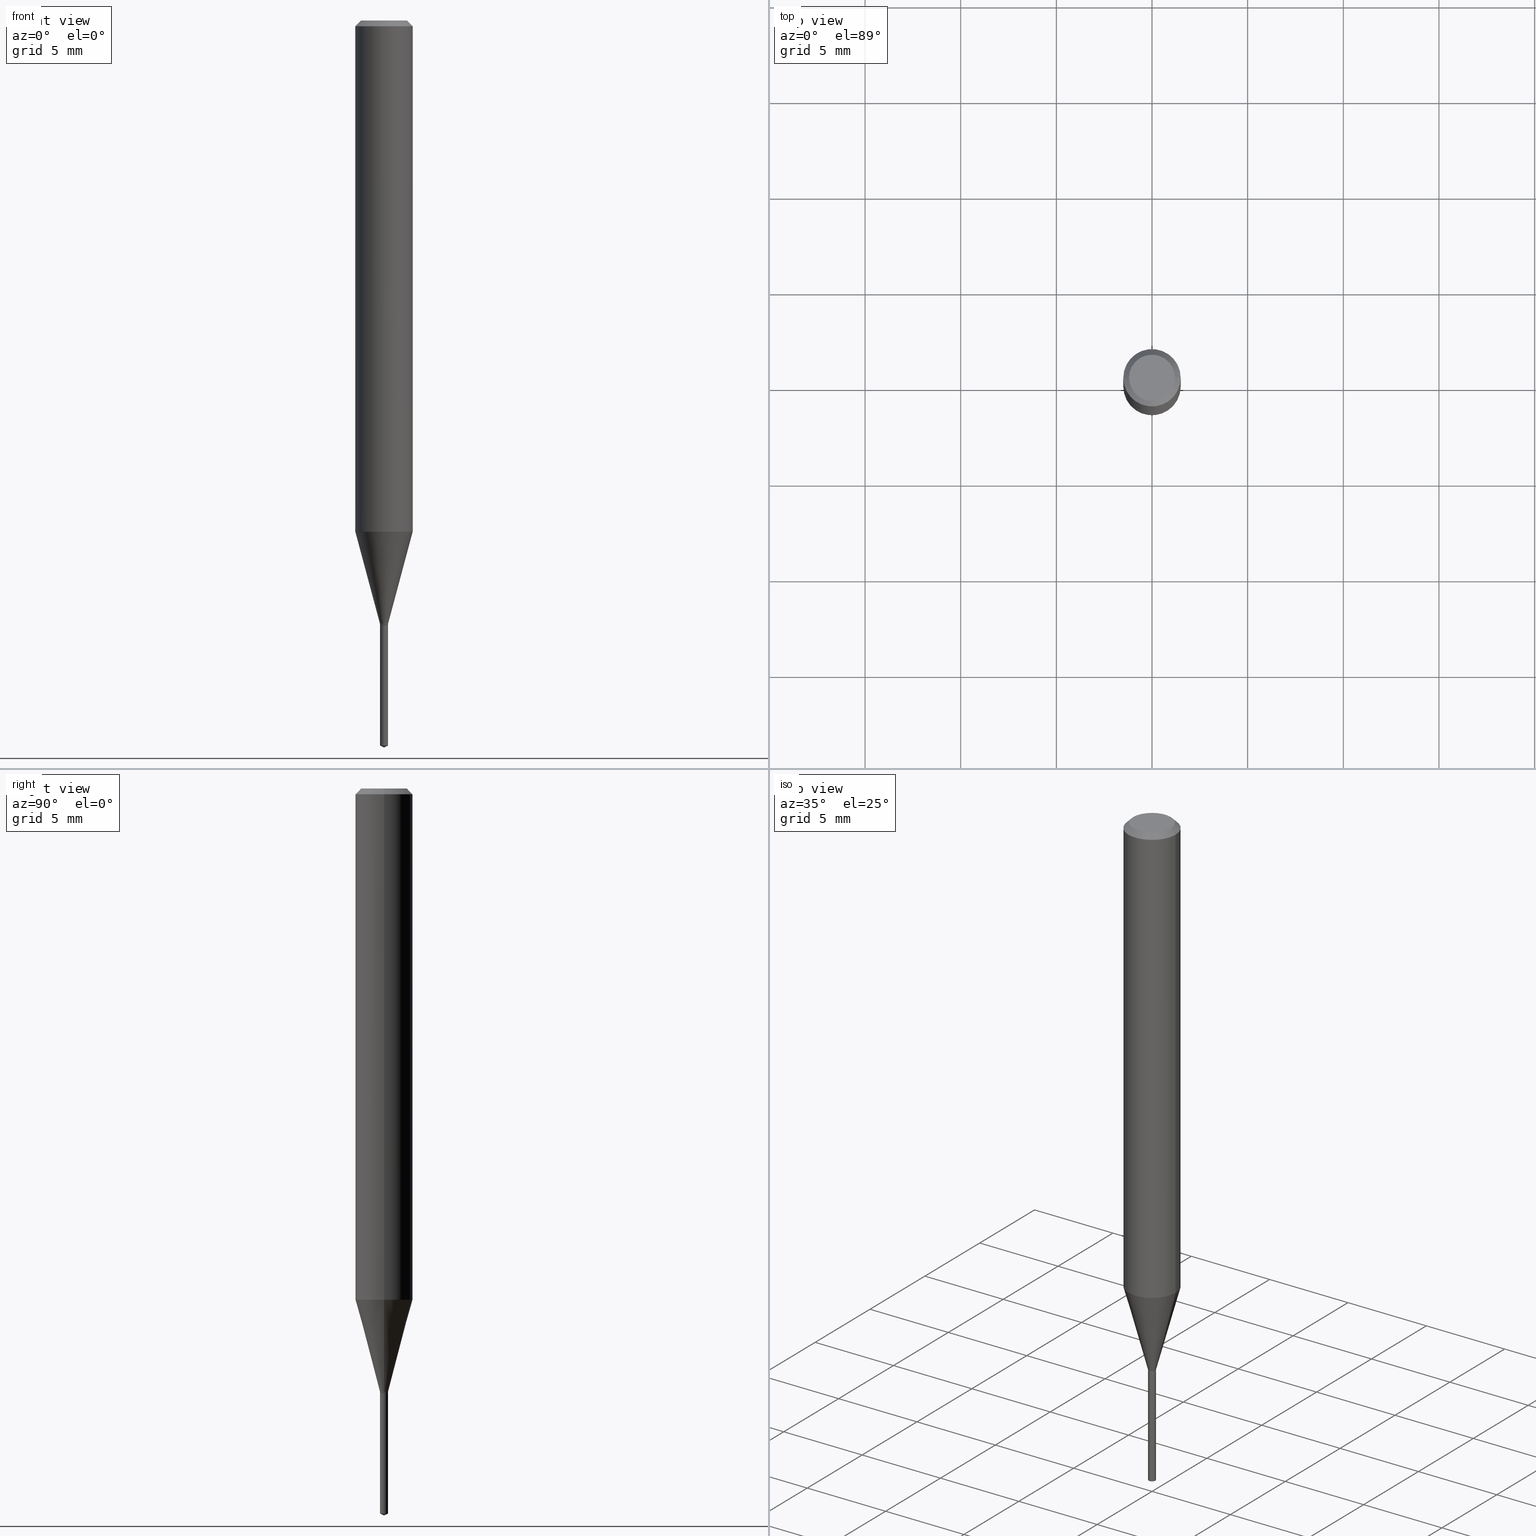
[diagram: canonical four-view strip — front | top / right | iso, engineering-drawing reading convention]
A machine part, canonical four-view strip (front | top / right | iso — engineering-drawing reading convention). The complete STEP part file that produces these views, byte-faithful:
ISO-10303-21;
HEADER;
FILE_DESCRIPTION (( 'STEP AP203' ),
    '1' );
FILE_NAME ('07417.STEP',
    '2024-04-23T21:13:39',
    ( '' ),
    ( '' ),
    'SwSTEP 2.0',
    'SolidWorks 2023',
    '' );
FILE_SCHEMA (( 'CONFIG_CONTROL_DESIGN' ));
ENDSEC;

DATA;
#1 = CARTESIAN_POINT ( 'NONE',  ( 5.861977570023868854E-17, 0.008249999999995658376, -1.244099999999999984 ) ) ;
#2 = CARTESIAN_POINT ( 'NONE',  ( -0.008250000000000000389, -4.276403454607441513E-15, -1.241600000000000037 ) ) ;
#3 = EDGE_CURVE ( 'NONE', #97, #46, #389, .T. ) ;
#4 = CARTESIAN_POINT ( 'NONE',  ( 2.888098660104664204E-31, -4.123439461173780263E-17, -0.01181000000000007218 ) ) ;
#5 = FACE_OUTER_BOUND ( 'NONE', #148, .T. ) ;
#6 = ORIENTED_EDGE ( 'NONE', *, *, #441, .T. ) ;
#7 = PLANE ( 'NONE',  #131 ) ;
#8 = VECTOR ( 'NONE', #340, 39.37007874015748854 ) ;
#9 = VECTOR ( 'NONE', #155, 39.37007874015748143 ) ;
#10 = CARTESIAN_POINT ( 'NONE',  ( 0.05905000000000013710, -4.085423580312769324E-15, -1.052011818975500779 ) ) ;
#11 = ORIENTED_EDGE ( 'NONE', *, *, #454, .T. ) ;
#12 = DIRECTION ( 'NONE',  ( -0.7071067811865453523, 2.468850131082234184E-15, -0.7071067811865496822 ) ) ;
#13 = FACE_OUTER_BOUND ( 'NONE', #242, .T. ) ;
#14 = EDGE_CURVE ( 'NONE', #178, #478, #348, .T. ) ;
#15 = ORIENTED_EDGE ( 'NONE', *, *, #164, .F. ) ;
#16 = CALENDAR_DATE ( 2024, 23, 4 ) ;
#17 = AXIS2_PLACEMENT_3D ( 'NONE', #404, #149, #292 ) ;
#18 = CIRCLE ( 'NONE', #196, 0.008250000000000000389 ) ;
#19 = ORIENTED_EDGE ( 'NONE', *, *, #205, .F. ) ;
#20 = DIRECTION ( 'NONE',  ( -6.982962677686266711E-15, -1.000000000000000000, 3.520397390770526445E-15 ) ) ;
#21 = APPROVAL_STATUS ( 'not_yet_approved' ) ;
#22 = CONICAL_SURFACE ( 'NONE', #239, 0.05904999999999999832, 0.7853981633974452814 ) ;
#23 = ORIENTED_EDGE ( 'NONE', *, *, #61, .F. ) ;
#24 = CIRCLE ( 'NONE', #182, 0.008250000000000003858 ) ;
#25 = EDGE_CURVE ( 'NONE', #175, #450, #203, .T. ) ;
#26 = CARTESIAN_POINT ( 'NONE',  ( 0.008250000000000000389, -4.392632672398560829E-15, -1.241600000000000037 ) ) ;
#27 = APPROVAL_STATUS ( 'not_yet_approved' ) ;
#28 = VERTEX_POINT ( 'NONE', #204 ) ;
#29 = ORIENTED_EDGE ( 'NONE', *, *, #295, .T. ) ;
#30 = CARTESIAN_POINT ( 'NONE',  ( -5.760944209088129273E-17, -0.008250000000004345871, -1.244099999999999984 ) ) ;
#31 = AXIS2_PLACEMENT_3D ( 'NONE', #140, #102, #396 ) ;
#32 = PRODUCT_DEFINITION_FORMATION_WITH_SPECIFIED_SOURCE ( 'ANY', '', #330, .NOT_KNOWN. ) ;
#33 = CALENDAR_DATE ( 2024, 23, 4 ) ;
#34 = ADVANCED_FACE ( 'NONE', ( #388 ), #165, .T. ) ;
#35 = EDGE_LOOP ( 'NONE', ( #318, #361, #208, #320 ) ) ;
#36 = CIRCLE ( 'NONE', #31, 0.04724000000000000421 ) ;
#37 = AXIS2_PLACEMENT_3D ( 'NONE', #302, #419, #232 ) ;
#38 = CARTESIAN_POINT ( 'NONE',  ( 3.036294069759465269E-29, -4.335023230307649634E-15, -1.241600000000000037 ) ) ;
#39 = EDGE_CURVE ( 'NONE', #276, #46, #170, .T. ) ;
#40 = DIRECTION ( 'NONE',  ( -2.433949354103485076E-29, 3.507977849870565923E-15, 1.000000000000000000 ) ) ;
#41 = SHAPE_DEFINITION_REPRESENTATION ( #188, #275 ) ;
#42 = FACE_OUTER_BOUND ( 'NONE', #250, .T. ) ;
#43 = EDGE_LOOP ( 'NONE', ( #56, #137 ) ) ;
#44 = CARTESIAN_POINT ( 'NONE',  ( 0.05904999999999999832, -4.463468013801466955E-16, -0.01181000000000007218 ) ) ;
#45 = DIRECTION ( 'NONE',  ( -2.445468806185136877E-29, 3.491481338843145188E-15, 1.000000000000000000 ) ) ;
#46 = VERTEX_POINT ( 'NONE', #315 ) ;
#47 = DIRECTION ( 'NONE',  ( -6.982962677686266711E-15, -1.000000000000000000, 0.000000000000000000 ) ) ;
#48 = CC_DESIGN_APPROVAL ( #100, ( #32 ) ) ;
#49 = CARTESIAN_POINT ( 'NONE',  ( -0.008250000000000000389, -4.279894935946284521E-15, -1.243600000000000039 ) ) ;
#50 = VERTEX_POINT ( 'NONE', #26 ) ;
#51 = APPROVAL ( #313, 'UNSPECIFIED' ) ;
#52 = FACE_OUTER_BOUND ( 'NONE', #473, .T. ) ;
#53 = ORIENTED_EDGE ( 'NONE', *, *, #55, .F. ) ;
#54 = CARTESIAN_POINT ( 'NONE',  ( 3.042407741774928155E-29, -4.343751933654757151E-15, -1.244099999999999984 ) ) ;
#55 = EDGE_CURVE ( 'NONE', #28, #178, #470, .T. ) ;
#56 = ORIENTED_EDGE ( 'NONE', *, *, #114, .T. ) ;
#57 = DIRECTION ( 'NONE',  ( -2.445468806185136597E-29, 3.491481338843145583E-15, 1.000000000000000000 ) ) ;
#58 = ORIENTED_EDGE ( 'NONE', *, *, #274, .F. ) ;
#59 = ORIENTED_EDGE ( 'NONE', *, *, #363, .T. ) ;
#60 = ORIENTED_EDGE ( 'NONE', *, *, #405, .T. ) ;
#61 = EDGE_CURVE ( 'NONE', #28, #478, #443, .T. ) ;
#62 = AXIS2_PLACEMENT_3D ( 'NONE', #289, #110, #255 ) ;
#63 = DIRECTION ( 'NONE',  ( -2.445468806185136877E-29, 3.491481338843145188E-15, 1.000000000000000000 ) ) ;
#64 = LOCAL_TIME ( 17, 13, 39.00000000000000000, #309 ) ;
#65 = PERSON ( 'UNSPECIFIED', 'UNSPECIFIED', 'UNSPECIFIED', ('UNSPECIFIED'), ('UNSPECIFIED'), ('UNSPECIFIED') ) ;
#66 = DIRECTION ( 'NONE',  ( 6.982962677686265922E-15, 1.000000000000000000, -3.507977849870566318E-15 ) ) ;
#67 = EDGE_LOOP ( 'NONE', ( #53, #350, #324 ) ) ;
#68 = COORDINATED_UNIVERSAL_TIME_OFFSET ( 5, 0, .BEHIND. ) ;
#69 = DIRECTION ( 'NONE',  ( -2.445468806185136877E-29, 3.491481338843145188E-15, 1.000000000000000000 ) ) ;
#70 = EDGE_CURVE ( 'NONE', #247, #243, #439, .T. ) ;
#71 = AXIS2_PLACEMENT_3D ( 'NONE', #229, #72, #197 ) ;
#72 = DIRECTION ( 'NONE',  ( -2.445468806185136597E-29, 3.491481338843145583E-15, 1.000000000000000000 ) ) ;
#73 = DIRECTION ( 'NONE',  ( -2.445468806185136597E-29, 3.491481338843145583E-15, 1.000000000000000000 ) ) ;
#74 = CARTESIAN_POINT ( 'NONE',  ( 2.572662087042671903E-29, -3.673079634195394404E-15, -1.052011818975500779 ) ) ;
#75 = ADVANCED_FACE ( 'NONE', ( #346 ), #22, .T. ) ;
#76 = FACE_OUTER_BOUND ( 'NONE', #486, .T. ) ;
#77 = CLOSED_SHELL ( 'NONE', ( #475, #109, #180, #160, #144, #184, #173, #248, #75, #433, #258, #213 ) ) ;
#78 = DIRECTION ( 'NONE',  ( -2.445468806185136597E-29, 3.491481338843145583E-15, 1.000000000000000000 ) ) ;
#79 = CONICAL_SURFACE ( 'NONE', #368, 0.007749999999999999944, 0.7853981633975496424 ) ;
#80 = DIRECTION ( 'NONE',  ( -0.7071067811866191821, 7.493145998870612907E-15, 0.7071067811864758523 ) ) ;
#81 = CARTESIAN_POINT ( 'NONE',  ( 0.007749999999999999944, -4.397869894406826129E-15, -1.244099999999999984 ) ) ;
#82 = CARTESIAN_POINT ( 'NONE',  ( 3.042407741774928155E-29, -4.343751933654757151E-15, -1.244099999999999984 ) ) ;
#83 = DIRECTION ( 'NONE',  ( -6.982962677686265133E-15, -1.000000000000000000, 0.000000000000000000 ) ) ;
#84 = ADVANCED_FACE ( 'NONE', ( #253 ), #329, .F. ) ;
#85 = AXIS2_PLACEMENT_3D ( 'NONE', #359, #244, #20 ) ;
#86 = AXIS2_PLACEMENT_3D ( 'NONE', #374, #40, #47 ) ;
#87 = CARTESIAN_POINT ( 'NONE',  ( 3.036294069759465269E-29, -4.335023230307649634E-15, -1.241600000000000037 ) ) ;
#88 = CARTESIAN_POINT ( 'NONE',  ( 3.042407741774928155E-29, -4.343751933654757151E-15, -1.244099999999999984 ) ) ;
#89 = DIRECTION ( 'NONE',  ( -1.000000000000000000, 6.982962677686265922E-15, -4.876176775795935793E-29 ) ) ;
#90 = EDGE_CURVE ( 'NONE', #243, #168, #322, .T. ) ;
#91 = DIRECTION ( 'NONE',  ( -2.445468806185136597E-29, 3.491481338843145583E-15, 1.000000000000000000 ) ) ;
#92 = AXIS2_PLACEMENT_3D ( 'NONE', #338, #377, #367 ) ;
#93 = CONICAL_SURFACE ( 'NONE', #317, 0.007749999999999999944, 0.7853981633975496424 ) ;
#94 = CARTESIAN_POINT ( 'NONE',  ( 3.042407741774928155E-29, -4.343751933654757151E-15, -1.244099999999999984 ) ) ;
#95 = DATE_AND_TIME ( #464, #376 ) ;
#96 = EDGE_LOOP ( 'NONE', ( #11, #353, #251, #105 ) ) ;
#97 = VERTEX_POINT ( 'NONE', #214 ) ;
#98 = DATE_AND_TIME ( #390, #159 ) ;
#99 = DIRECTION ( 'NONE',  ( 1.000000000000000000, -6.982962677686238312E-15, 0.000000000000000000 ) ) ;
#100 = APPROVAL ( #27, 'UNSPECIFIED' ) ;
#101 = EDGE_LOOP ( 'NONE', ( #288, #157, #381, #162 ) ) ;
#102 = DIRECTION ( 'NONE',  ( -2.445468806185136597E-29, 3.491481338843145583E-15, 1.000000000000000000 ) ) ;
#103 = CIRCLE ( 'NONE', #181, 0.008250000000000000389 ) ;
#104 = CIRCLE ( 'NONE', #411, 0.05905000000000013710 ) ;
#105 = ORIENTED_EDGE ( 'NONE', *, *, #39, .F. ) ;
#106 = CARTESIAN_POINT ( 'NONE',  ( 2.888098660104664204E-31, -4.123439461173780263E-17, -0.01181000000000007218 ) ) ;
#107 = CARTESIAN_POINT ( 'NONE',  ( 3.041185007371835914E-29, -4.342006192985336437E-15, -1.243600000000000039 ) ) ;
#108 = ORIENTED_EDGE ( 'NONE', *, *, #220, .F. ) ;
#109 = ADVANCED_FACE ( 'NONE', ( #332 ), #126, .T. ) ;
#110 = DIRECTION ( 'NONE',  ( -2.445468806185136597E-29, 3.491481338843145583E-15, 1.000000000000000000 ) ) ;
#111 = PERSON_AND_ORGANIZATION_ROLE ( 'design_owner' ) ;
#112 = LOCAL_TIME ( 17, 13, 39.00000000000000000, #283 ) ;
#113 = CYLINDRICAL_SURFACE ( 'NONE', #86, 0.008250000000000002123 ) ;
#114 = EDGE_CURVE ( 'NONE', #444, #306, #36, .T. ) ;
#115 = FACE_OUTER_BOUND ( 'NONE', #323, .T. ) ;
#116 = DIRECTION ( 'NONE',  ( -2.445468806185136597E-29, 3.491481338843145583E-15, 1.000000000000000000 ) ) ;
#117 = AXIS2_PLACEMENT_3D ( 'NONE', #227, #198, #224 ) ;
#118 = AXIS2_PLACEMENT_3D ( 'NONE', #38, #235, #456 ) ;
#119 = CARTESIAN_POINT ( 'NONE',  ( 0.008250000000000000389, -5.760944209091170086E-17, 4.022845840031647239E-31 ) ) ;
#120 = CARTESIAN_POINT ( 'NONE',  ( -0.05904999999999999832, 3.711095515056362547E-16, -0.01181000000000007218 ) ) ;
#121 = ORIENTED_EDGE ( 'NONE', *, *, #90, .T. ) ;
#122 = EDGE_CURVE ( 'NONE', #178, #151, #362, .T. ) ;
#123 = ORIENTED_EDGE ( 'NONE', *, *, #25, .F. ) ;
#124 = CARTESIAN_POINT ( 'NONE',  ( 5.861977570024480222E-17, 0.008249999999995656641, -1.244099999999999984 ) ) ;
#125 = DIRECTION ( 'NONE',  ( -2.445468806185136597E-29, 3.491481338843145583E-15, 1.000000000000000000 ) ) ;
#126 = CONICAL_SURFACE ( 'NONE', #209, 0.05904999999999999832, 0.7853981633974452814 ) ;
#127 = CC_DESIGN_APPROVAL ( #51, ( #270 ) ) ;
#128 = DIRECTION ( 'NONE',  ( -2.433949354103485076E-29, 3.507977849870565923E-15, 1.000000000000000000 ) ) ;
#129 = APPROVAL ( #21, 'UNSPECIFIED' ) ;
#130 = DIRECTION ( 'NONE',  ( 2.438088387897960049E-29, -3.491481338843145188E-15, -1.000000000000000000 ) ) ;
#131 = AXIS2_PLACEMENT_3D ( 'NONE', #424, #130, #89 ) ;
#132 = ORIENTED_EDGE ( 'NONE', *, *, #268, .F. ) ;
#133 = CC_DESIGN_DATE_AND_TIME_ASSIGNMENT ( #171, #429, ( #270 ) ) ;
#134 =( CONVERSION_BASED_UNIT ( 'INCH', #431 ) LENGTH_UNIT ( ) NAMED_UNIT ( #277 ) );
#135 = MANIFOLD_SOLID_BREP ( 'Body-Move/Copy2[1]', #158 ) ;
#136 = ORIENTED_EDGE ( 'NONE', *, *, #268, .T. ) ;
#137 = ORIENTED_EDGE ( 'NONE', *, *, #413, .T. ) ;
#138 = APPROVAL_ROLE ( '' ) ;
#139 = MANIFOLD_SOLID_BREP ( 'Body-Move/Copy2[2]', #77 ) ;
#140 = CARTESIAN_POINT ( 'NONE',  ( 8.265746106709734507E-48, -1.180129479067563789E-33, -3.380025165646692144E-19 ) ) ;
#141 = DIRECTION ( 'NONE',  ( 6.439704144417005898E-15, 0.9063077870366488265, 0.4226182617407018838 ) ) ;
#142 = VECTOR ( 'NONE', #345, 39.37007874015748143 ) ;
#143 = CARTESIAN_POINT ( 'NONE',  ( 0.000000000000000000, 0.000000000000000000, 0.000000000000000000 ) ) ;
#144 = ADVANCED_FACE ( 'NONE', ( #488 ), #146, .T. ) ;
#145 = APPLICATION_CONTEXT ( 'configuration controlled 3d designs of mechanical parts and assemblies' ) ;
#146 = CYLINDRICAL_SURFACE ( 'NONE', #62, 0.008250000000000000389 ) ;
#147 = CALENDAR_DATE ( 2024, 23, 4 ) ;
#148 = EDGE_LOOP ( 'NONE', ( #58, #425, #176, #393 ) ) ;
#149 = DIRECTION ( 'NONE',  ( -2.445468806185136597E-29, 3.491481338843145583E-15, 1.000000000000000000 ) ) ;
#150 = AXIS2_PLACEMENT_3D ( 'NONE', #107, #254, #284 ) ;
#151 = VERTEX_POINT ( 'NONE', #399 ) ;
#152 = CIRCLE ( 'NONE', #219, 0.008250000000000000389 ) ;
#153 = DIRECTION ( 'NONE',  ( -2.445468806185136877E-29, 3.491481338843145188E-15, 1.000000000000000000 ) ) ;
#154 = CARTESIAN_POINT ( 'NONE',  ( 3.036294069759465269E-29, -4.335023230307649634E-15, -1.241600000000000037 ) ) ;
#155 = DIRECTION ( 'NONE',  ( 0.7071067811865453523, -7.319954787623248157E-15, -0.7071067811865496822 ) ) ;
#156 = CARTESIAN_POINT ( 'NONE',  ( 0.008250000000000000389, -4.399615635076248421E-15, -1.243600000000000039 ) ) ;
#157 = ORIENTED_EDGE ( 'NONE', *, *, #311, .T. ) ;
#158 = CLOSED_SHELL ( 'NONE', ( #386, #469, #34, #279, #84 ) ) ;
#159 = LOCAL_TIME ( 17, 13, 39.00000000000000000, #216 ) ;
#160 = ADVANCED_FACE ( 'NONE', ( #218 ), #331, .T. ) ;
#161 = DIRECTION ( 'NONE',  ( 1.000000000000000000, -6.982962677686243834E-15, 0.000000000000000000 ) ) ;
#162 = ORIENTED_EDGE ( 'NONE', *, *, #122, .F. ) ;
#163 = CARTESIAN_POINT ( 'NONE',  ( 0.007749999999999999944, -4.397869894406826129E-15, -1.244099999999999984 ) ) ;
#164 = EDGE_CURVE ( 'NONE', #243, #247, #103, .T. ) ;
#165 = CONICAL_SURFACE ( 'NONE', #85, 84.42940631927260142, 1.134464013796308013 ) ;
#166 = CIRCLE ( 'NONE', #463, 0.05905000000000013710 ) ;
#167 = ORIENTED_EDGE ( 'NONE', *, *, #55, .T. ) ;
#168 = VERTEX_POINT ( 'NONE', #193 ) ;
#169 = DIRECTION ( 'NONE',  ( 1.000000000000000000, -6.982962677686238312E-15, 0.000000000000000000 ) ) ;
#170 = LINE ( 'NONE', #385, #269 ) ;
#171 = DATE_AND_TIME ( #16, #64 ) ;
#172 = ORIENTED_EDGE ( 'NONE', *, *, #343, .T. ) ;
#173 = ADVANCED_FACE ( 'NONE', ( #42 ), #427, .T. ) ;
#174 = AXIS2_PLACEMENT_3D ( 'NONE', #298, #417, #83 ) ;
#175 = VERTEX_POINT ( 'NONE', #297 ) ;
#176 = ORIENTED_EDGE ( 'NONE', *, *, #39, .T. ) ;
#177 = PERSON_AND_ORGANIZATION ( #65, #457 ) ;
#178 = VERTEX_POINT ( 'NONE', #370 ) ;
#179 = ORIENTED_EDGE ( 'NONE', *, *, #295, .F. ) ;
#180 = ADVANCED_FACE ( 'NONE', ( #260 ), #265, .T. ) ;
#181 = AXIS2_PLACEMENT_3D ( 'NONE', #448, #73, #221 ) ;
#182 = AXIS2_PLACEMENT_3D ( 'NONE', #308, #408, #337 ) ;
#183 = CARTESIAN_POINT ( 'NONE',  ( -0.008250000000000000389, 5.861977570020826810E-17, -4.058121449460297368E-31 ) ) ;
#184 = ADVANCED_FACE ( 'NONE', ( #115 ), #191, .T. ) ;
#185 = VECTOR ( 'NONE', #69, 39.37007874015748143 ) ;
#186 = CC_DESIGN_SECURITY_CLASSIFICATION ( #270, ( #32 ) ) ;
#187 = CARTESIAN_POINT ( 'NONE',  ( 3.042407741774928155E-29, -4.343751933654757151E-15, -1.244099999999999984 ) ) ;
#188 = PRODUCT_DEFINITION_SHAPE ( 'NONE', 'NONE',  #378 ) ;
#189 = DIRECTION ( 'NONE',  ( 1.000000000000000000, -6.982962677686266711E-15, 0.000000000000000000 ) ) ;
#190 = APPROVAL_DATE_TIME ( #95, #51 ) ;
#191 = CYLINDRICAL_SURFACE ( 'NONE', #92, 0.008250000000000000389 ) ;
#192 = DIRECTION ( 'NONE',  ( 1.000000000000000000, -6.982962677686264344E-15, 0.000000000000000000 ) ) ;
#193 = CARTESIAN_POINT ( 'NONE',  ( -0.008250000000000000389, -4.279894935946284521E-15, -1.241600000000000037 ) ) ;
#194 = ORIENTED_EDGE ( 'NONE', *, *, #114, .F. ) ;
#195 = AXIS2_PLACEMENT_3D ( 'NONE', #384, #312, #466 ) ;
#196 = AXIS2_PLACEMENT_3D ( 'NONE', #291, #223, #366 ) ;
#197 = DIRECTION ( 'NONE',  ( 1.000000000000000000, -6.982962677686266711E-15, 4.876185090822587894E-29 ) ) ;
#198 = DIRECTION ( 'NONE',  ( -2.445468806185136597E-29, 3.491481338843145583E-15, 1.000000000000000000 ) ) ;
#199 = EDGE_CURVE ( 'NONE', #168, #50, #380, .T. ) ;
#200 = DIRECTION ( 'NONE',  ( 1.000000000000000000, -6.982962677686243834E-15, 0.000000000000000000 ) ) ;
#201 = ORIENTED_EDGE ( 'NONE', *, *, #220, .T. ) ;
#202 = ORIENTED_EDGE ( 'NONE', *, *, #228, .T. ) ;
#203 = CIRCLE ( 'NONE', #299, 0.007749999999999999944 ) ;
#204 = CARTESIAN_POINT ( 'NONE',  ( 3.641431628674223535E-29, -5.248285661191353441E-15, -1.496099999999999985 ) ) ;
#205 = EDGE_CURVE ( 'NONE', #168, #462, #451, .T. ) ;
#206 = ORIENTED_EDGE ( 'NONE', *, *, #373, .T. ) ;
#207 = DIRECTION ( 'NONE',  ( -2.445468806185136597E-29, 3.491481338843145583E-15, 1.000000000000000000 ) ) ;
#208 = ORIENTED_EDGE ( 'NONE', *, *, #454, .F. ) ;
#209 = AXIS2_PLACEMENT_3D ( 'NONE', #106, #286, #259 ) ;
#210 = CIRCLE ( 'NONE', #263, 0.007749999999999999944 ) ;
#211 = DIRECTION ( 'NONE',  ( -2.433949354103485076E-29, 3.507977849870565923E-15, 1.000000000000000000 ) ) ;
#212 = PERSON_AND_ORGANIZATION ( #65, #457 ) ;
#213 = ADVANCED_FACE ( 'NONE', ( #52 ), #93, .T. ) ;
#214 = CARTESIAN_POINT ( 'NONE',  ( -0.05904999999999999832, -1.437581528937225982E-15, -0.01181000000000007218 ) ) ;
#215 = ORIENTED_EDGE ( 'NONE', *, *, #261, .F. ) ;
#216 = COORDINATED_UNIVERSAL_TIME_OFFSET ( 5, 0, .BEHIND. ) ;
#217 = AXIS2_PLACEMENT_3D ( 'NONE', #154, #125, #161 ) ;
#218 = FACE_OUTER_BOUND ( 'NONE', #35, .T. ) ;
#219 = AXIS2_PLACEMENT_3D ( 'NONE', #87, #116, #200 ) ;
#220 = EDGE_CURVE ( 'NONE', #444, #97, #267, .T. ) ;
#221 = DIRECTION ( 'NONE',  ( 1.000000000000000000, -6.982962677686303787E-15, 0.000000000000000000 ) ) ;
#222 = PERSON_AND_ORGANIZATION_ROLE ( 'creator' ) ;
#223 = DIRECTION ( 'NONE',  ( -2.433949354103485076E-29, 3.507977849870565923E-15, 1.000000000000000000 ) ) ;
#224 = DIRECTION ( 'NONE',  ( 1.000000000000000000, -6.982962677686266711E-15, 4.876176775795936353E-29 ) ) ;
#225 = PERSON_AND_ORGANIZATION ( #65, #457 ) ;
#226 = APPROVAL_ROLE ( '' ) ;
#227 = CARTESIAN_POINT ( 'NONE',  ( 0.000000000000000000, 0.000000000000000000, 0.000000000000000000 ) ) ;
#228 = EDGE_CURVE ( 'NONE', #468, #151, #401, .T. ) ;
#229 = CARTESIAN_POINT ( 'NONE',  ( 8.265746106709734507E-48, -1.180129479067563789E-33, -3.380025165646692144E-19 ) ) ;
#230 = DIRECTION ( 'NONE',  ( 1.000000000000000000, -6.982962677686265922E-15, 4.876176775795935793E-29 ) ) ;
#231 = DIRECTION ( 'NONE',  ( 1.000000000000000000, -6.982962677686238312E-15, 0.000000000000000000 ) ) ;
#232 = DIRECTION ( 'NONE',  ( 1.000000000000000000, -6.982962677686266711E-15, 4.876176775795936353E-29 ) ) ;
#233 = AXIS2_PLACEMENT_3D ( 'NONE', #294, #483, #66 ) ;
#234 = DIRECTION ( 'NONE',  ( 1.000000000000000000, -6.982962677686264344E-15, 0.000000000000000000 ) ) ;
#235 = DIRECTION ( 'NONE',  ( -2.445468806185136597E-29, 3.491481338843145583E-15, 1.000000000000000000 ) ) ;
#236 = EDGE_LOOP ( 'NONE', ( #476, #238, #458, #132 ) ) ;
#237 = ORIENTED_EDGE ( 'NONE', *, *, #3, .T. ) ;
#238 = ORIENTED_EDGE ( 'NONE', *, *, #241, .T. ) ;
#239 = AXIS2_PLACEMENT_3D ( 'NONE', #432, #477, #326 ) ;
#240 = AXIS2_PLACEMENT_3D ( 'NONE', #4, #78, #189 ) ;
#241 = EDGE_CURVE ( 'NONE', #175, #243, #335, .T. ) ;
#242 = EDGE_LOOP ( 'NONE', ( #428, #29, #489, #246 ) ) ;
#243 = VERTEX_POINT ( 'NONE', #49 ) ;
#244 = DIRECTION ( 'NONE',  ( -2.433949354103485076E-29, 3.507977849870565923E-15, 1.000000000000000000 ) ) ;
#245 =( NAMED_UNIT ( * ) PLANE_ANGLE_UNIT ( ) SI_UNIT ( $, .RADIAN. ) );
#246 = ORIENTED_EDGE ( 'NONE', *, *, #228, .F. ) ;
#247 = VERTEX_POINT ( 'NONE', #156 ) ;
#248 = ADVANCED_FACE ( 'NONE', ( #5 ), #264, .T. ) ;
#249 = DIRECTION ( 'NONE',  ( -2.433949354103485076E-29, 3.507977849870566318E-15, 1.000000000000000000 ) ) ;
#250 = EDGE_LOOP ( 'NONE', ( #19, #356, #6, #303 ) ) ;
#251 = ORIENTED_EDGE ( 'NONE', *, *, #343, .F. ) ;
#252 = MECHANICAL_CONTEXT ( 'NONE', #145, 'mechanical' ) ;
#253 = FACE_OUTER_BOUND ( 'NONE', #430, .T. ) ;
#254 = DIRECTION ( 'NONE',  ( -2.445468806185136597E-29, 3.491481338843145583E-15, 1.000000000000000000 ) ) ;
#255 = DIRECTION ( 'NONE',  ( 1.000000000000000000, -6.982962677686266711E-15, 4.876176775795935793E-29 ) ) ;
#256 = PERSON_AND_ORGANIZATION ( #65, #457 ) ;
#257 = APPROVAL_PERSON_ORGANIZATION ( #212, #100, #474 ) ;
#258 = ADVANCED_FACE ( 'NONE', ( #76 ), #452, .F. ) ;
#259 = DIRECTION ( 'NONE',  ( -1.000000000000000000, 6.982962677686266711E-15, 0.000000000000000000 ) ) ;
#260 = FACE_OUTER_BOUND ( 'NONE', #96, .T. ) ;
#261 = EDGE_CURVE ( 'NONE', #50, #168, #152, .T. ) ;
#262 = LINE ( 'NONE', #372, #285 ) ;
#263 = AXIS2_PLACEMENT_3D ( 'NONE', #82, #371, #231 ) ;
#264 = CYLINDRICAL_SURFACE ( 'NONE', #37, 0.05905000000000006771 ) ;
#265 = CYLINDRICAL_SURFACE ( 'NONE', #117, 0.05905000000000006771 ) ;
#266 = CARTESIAN_POINT ( 'NONE',  ( 5.861977570024475291E-17, 0.008249999999994789279, -1.492252961820221158 ) ) ;
#267 = LINE ( 'NONE', #120, #293 ) ;
#268 = EDGE_CURVE ( 'NONE', #450, #247, #344, .T. ) ;
#269 = VECTOR ( 'NONE', #63, 39.37007874015748143 ) ;
#270 = SECURITY_CLASSIFICATION ( '', '', #336 ) ;
#271 = CYLINDRICAL_SURFACE ( 'NONE', #310, 0.008250000000000002123 ) ;
#272 = PERSON_AND_ORGANIZATION ( #65, #457 ) ;
#273 = LINE ( 'NONE', #307, #420 ) ;
#274 = EDGE_CURVE ( 'NONE', #462, #97, #262, .T. ) ;
#275 = ADVANCED_BREP_SHAPE_REPRESENTATION ( '07417', ( #135, #139, #349 ), #490 ) ;
#276 = VERTEX_POINT ( 'NONE', #10 ) ;
#277 = DIMENSIONAL_EXPONENTS ( 1.000000000000000000, 0.000000000000000000, 0.000000000000000000, 0.000000000000000000, 0.000000000000000000, 0.000000000000000000, 0.000000000000000000 ) ;
#278 = CARTESIAN_POINT ( 'NONE',  ( 3.646399482916122911E-29, -5.214267027099868810E-15, -1.492252961820221158 ) ) ;
#279 = ADVANCED_FACE ( 'NONE', ( #13 ), #271, .T. ) ;
#280 =( NAMED_UNIT ( * ) SI_UNIT ( $, .STERADIAN. ) SOLID_ANGLE_UNIT ( ) );
#281 = ORIENTED_EDGE ( 'NONE', *, *, #413, .F. ) ;
#282 = ORIENTED_EDGE ( 'NONE', *, *, #90, .F. ) ;
#283 = COORDINATED_UNIVERSAL_TIME_OFFSET ( 5, 0, .BEHIND. ) ;
#284 = DIRECTION ( 'NONE',  ( 1.000000000000000000, -6.982962677686303787E-15, 0.000000000000000000 ) ) ;
#285 = VECTOR ( 'NONE', #45, 39.37007874015748143 ) ;
#286 = DIRECTION ( 'NONE',  ( 2.445468806185136597E-29, -3.491481338843145583E-15, -1.000000000000000000 ) ) ;
#287 = DIRECTION ( 'NONE',  ( -6.328713451373349657E-15, -0.9063077870366458288, 0.4226182617407081565 ) ) ;
#288 = ORIENTED_EDGE ( 'NONE', *, *, #14, .T. ) ;
#289 = CARTESIAN_POINT ( 'NONE',  ( 0.000000000000000000, 0.000000000000000000, 0.000000000000000000 ) ) ;
#290 = CC_DESIGN_PERSON_AND_ORGANIZATION_ASSIGNMENT ( #256, #445, ( #378 ) ) ;
#291 = CARTESIAN_POINT ( 'NONE',  ( 3.042407741774928155E-29, -4.343751933654757151E-15, -1.244099999999999984 ) ) ;
#292 = DIRECTION ( 'NONE',  ( 1.000000000000000000, -6.982962677686243834E-15, 0.000000000000000000 ) ) ;
#293 = VECTOR ( 'NONE', #12, 39.37007874015748143 ) ;
#294 = CARTESIAN_POINT ( 'NONE',  ( 3.042407741774928155E-29, -4.343751933654757151E-15, -1.244099999999999984 ) ) ;
#295 = EDGE_CURVE ( 'NONE', #478, #178, #24, .T. ) ;
#296 = CARTESIAN_POINT ( 'NONE',  ( 0.04724000000000000421, -3.852183633974369345E-16, -3.380025165621689721E-19 ) ) ;
#297 = CARTESIAN_POINT ( 'NONE',  ( -0.007749999999999999944, -4.286035644459238729E-15, -1.244099999999999984 ) ) ;
#298 = CARTESIAN_POINT ( 'NONE',  ( 3.042407741774928155E-29, -4.343751933654757151E-15, -1.244099999999999984 ) ) ;
#299 = AXIS2_PLACEMENT_3D ( 'NONE', #94, #57, #99 ) ;
#300 = LOCAL_TIME ( 17, 13, 39.00000000000000000, #68 ) ;
#301 = EDGE_LOOP ( 'NONE', ( #354, #121, #215, #398 ) ) ;
#302 = CARTESIAN_POINT ( 'NONE',  ( 0.000000000000000000, 0.000000000000000000, 0.000000000000000000 ) ) ;
#303 = ORIENTED_EDGE ( 'NONE', *, *, #328, .F. ) ;
#304 = CARTESIAN_POINT ( 'NONE',  ( 2.572662087042671903E-29, -3.673079634195394404E-15, -1.052011818975500779 ) ) ;
#305 = CC_DESIGN_DATE_AND_TIME_ASSIGNMENT ( #394, #319, ( #378 ) ) ;
#306 = VERTEX_POINT ( 'NONE', #296 ) ;
#307 = CARTESIAN_POINT ( 'NONE',  ( 0.008250000000000000389, -4.392632672398560829E-15, -1.241600000000000037 ) ) ;
#308 = CARTESIAN_POINT ( 'NONE',  ( 3.646399482916122911E-29, -5.214267027099868810E-15, -1.492252961820221158 ) ) ;
#309 = COORDINATED_UNIVERSAL_TIME_OFFSET ( 5, 0, .BEHIND. ) ;
#310 = AXIS2_PLACEMENT_3D ( 'NONE', #88, #128, #423 ) ;
#311 = EDGE_CURVE ( 'NONE', #478, #468, #453, .T. ) ;
#312 = DIRECTION ( 'NONE',  ( -2.445468806185136597E-29, 3.491481338843145583E-15, 1.000000000000000000 ) ) ;
#313 = APPROVAL_STATUS ( 'not_yet_approved' ) ;
#314 =( LENGTH_UNIT ( ) NAMED_UNIT ( * ) SI_UNIT ( $, .METRE. ) );
#315 = CARTESIAN_POINT ( 'NONE',  ( 0.05904999999999999832, -4.535783407291118600E-16, -0.01181000000000007218 ) ) ;
#316 = ORIENTED_EDGE ( 'NONE', *, *, #164, .T. ) ;
#317 = AXIS2_PLACEMENT_3D ( 'NONE', #187, #407, #410 ) ;
#318 = ORIENTED_EDGE ( 'NONE', *, *, #261, .T. ) ;
#319 = DATE_TIME_ROLE ( 'creation_date' ) ;
#320 = ORIENTED_EDGE ( 'NONE', *, *, #441, .F. ) ;
#321 = PERSON_AND_ORGANIZATION ( #65, #457 ) ;
#322 = LINE ( 'NONE', #183, #185 ) ;
#323 = EDGE_LOOP ( 'NONE', ( #282, #316, #206, #387 ) ) ;
#324 = ORIENTED_EDGE ( 'NONE', *, *, #14, .F. ) ;
#325 = VECTOR ( 'NONE', #249, 39.37007874015748143 ) ;
#326 = DIRECTION ( 'NONE',  ( -1.000000000000000000, 6.982962677686266711E-15, 0.000000000000000000 ) ) ;
#327 = APPROVAL_DATE_TIME ( #436, #100 ) ;
#328 = EDGE_CURVE ( 'NONE', #462, #276, #166, .T. ) ;
#329 = PLANE ( 'NONE',  #233 ) ;
#330 = PRODUCT ( '07417', '07417', '', ( #252 ) ) ;
#331 = CONICAL_SURFACE ( 'NONE', #17, 0.008250000000000000389, 0.2617993877991499074 ) ;
#332 = FACE_OUTER_BOUND ( 'NONE', #438, .T. ) ;
#333 = APPROVAL_PERSON_ORGANIZATION ( #272, #51, #226 ) ;
#334 = LINE ( 'NONE', #119, #341 ) ;
#335 = LINE ( 'NONE', #459, #364 ) ;
#336 = SECURITY_CLASSIFICATION_LEVEL ( 'unclassified' ) ;
#337 = DIRECTION ( 'NONE',  ( -6.982962677686266711E-15, -1.000000000000000000, 0.000000000000000000 ) ) ;
#338 = CARTESIAN_POINT ( 'NONE',  ( 0.000000000000000000, 0.000000000000000000, 0.000000000000000000 ) ) ;
#339 = ORIENTED_EDGE ( 'NONE', *, *, #241, .F. ) ;
#340 = DIRECTION ( 'NONE',  ( -0.2588190451025211836, 5.211531920934547886E-15, 0.9659258262890679791 ) ) ;
#341 = VECTOR ( 'NONE', #153, 39.37007874015748143 ) ;
#342 = FACE_OUTER_BOUND ( 'NONE', #43, .T. ) ;
#343 = EDGE_CURVE ( 'NONE', #46, #97, #358, .T. ) ;
#344 = LINE ( 'NONE', #81, #142 ) ;
#345 = DIRECTION ( 'NONE',  ( 0.7071067811866191821, -2.468850131083007662E-15, 0.7071067811864758523 ) ) ;
#346 = FACE_OUTER_BOUND ( 'NONE', #437, .T. ) ;
#347 = CC_DESIGN_PERSON_AND_ORGANIZATION_ASSIGNMENT ( #400, #222, ( #32 ) ) ;
#348 = CIRCLE ( 'NONE', #409, 0.008250000000000003858 ) ;
#349 = AXIS2_PLACEMENT_3D ( 'NONE', #143, #360, #440 ) ;
#350 = ORIENTED_EDGE ( 'NONE', *, *, #61, .T. ) ;
#351 = ORIENTED_EDGE ( 'NONE', *, *, #25, .T. ) ;
#352 = DIRECTION ( 'NONE',  ( -6.982962677686266711E-15, -1.000000000000000000, 3.520397390770526445E-15 ) ) ;
#353 = ORIENTED_EDGE ( 'NONE', *, *, #274, .T. ) ;
#354 = ORIENTED_EDGE ( 'NONE', *, *, #70, .T. ) ;
#355 = DIRECTION ( 'NONE',  ( -2.433949354103485076E-29, 3.507977849870565923E-15, 1.000000000000000000 ) ) ;
#356 = ORIENTED_EDGE ( 'NONE', *, *, #199, .T. ) ;
#357 = VECTOR ( 'NONE', #141, 39.37007874015748143 ) ;
#358 = CIRCLE ( 'NONE', #240, 0.05904999999999999832 ) ;
#359 = CARTESIAN_POINT ( 'NONE',  ( -9.216901474160064469E-28, 1.328816018163103804E-13, 37.87397874015748300 ) ) ;
#360 = DIRECTION ( 'NONE',  ( 0.000000000000000000, 0.000000000000000000, 1.000000000000000000 ) ) ;
#361 = ORIENTED_EDGE ( 'NONE', *, *, #205, .T. ) ;
#362 = LINE ( 'NONE', #30, #325 ) ;
#363 = EDGE_CURVE ( 'NONE', #151, #468, #18, .T. ) ;
#364 = VECTOR ( 'NONE', #80, 39.37007874015748143 ) ;
#365 = PERSON_AND_ORGANIZATION ( #65, #457 ) ;
#366 = DIRECTION ( 'NONE',  ( -6.982962677686265133E-15, -1.000000000000000000, 0.000000000000000000 ) ) ;
#367 = DIRECTION ( 'NONE',  ( 1.000000000000000000, -6.982962677686266711E-15, 4.876176775795935793E-29 ) ) ;
#368 = AXIS2_PLACEMENT_3D ( 'NONE', #54, #207, #169 ) ;
#369 = FACE_OUTER_BOUND ( 'NONE', #101, .T. ) ;
#370 = CARTESIAN_POINT ( 'NONE',  ( -5.760944209087525302E-17, -0.008250000000005218437, -1.492252961820221158 ) ) ;
#371 = DIRECTION ( 'NONE',  ( -2.445468806185136597E-29, 3.491481338843145583E-15, 1.000000000000000000 ) ) ;
#372 = CARTESIAN_POINT ( 'NONE',  ( -0.05905000000000006771, 4.195754854663396409E-16, -2.904631170795525045E-30 ) ) ;
#373 = EDGE_CURVE ( 'NONE', #247, #50, #334, .T. ) ;
#374 = CARTESIAN_POINT ( 'NONE',  ( 3.042407741774928155E-29, -4.343751933654757151E-15, -1.244099999999999984 ) ) ;
#375 = DIRECTION ( 'NONE',  ( -2.438088387897960049E-29, 3.491481338843145188E-15, 1.000000000000000000 ) ) ;
#376 = LOCAL_TIME ( 17, 13, 39.00000000000000000, #467 ) ;
#377 = DIRECTION ( 'NONE',  ( -2.445468806185136597E-29, 3.491481338843145583E-15, 1.000000000000000000 ) ) ;
#378 = PRODUCT_DEFINITION ( 'UNKNOWN', '', #32, #485 ) ;
#379 = FACE_OUTER_BOUND ( 'NONE', #236, .T. ) ;
#380 = CIRCLE ( 'NONE', #217, 0.008250000000000000389 ) ;
#381 = ORIENTED_EDGE ( 'NONE', *, *, #363, .F. ) ;
#382 = AXIS2_PLACEMENT_3D ( 'NONE', #412, #375, #230 ) ;
#383 = FACE_OUTER_BOUND ( 'NONE', #67, .T. ) ;
#384 = CARTESIAN_POINT ( 'NONE',  ( 2.888098660104664204E-31, -4.123439461173780263E-17, -0.01181000000000007218 ) ) ;
#385 = CARTESIAN_POINT ( 'NONE',  ( 0.05905000000000006771, -4.123439461173745257E-16, 2.879382386107503723E-30 ) ) ;
#386 = ADVANCED_FACE ( 'NONE', ( #369 ), #113, .T. ) ;
#387 = ORIENTED_EDGE ( 'NONE', *, *, #199, .F. ) ;
#388 = FACE_OUTER_BOUND ( 'NONE', #479, .T. ) ;
#389 = CIRCLE ( 'NONE', #195, 0.05904999999999999832 ) ;
#390 = CALENDAR_DATE ( 2024, 23, 4 ) ;
#391 = VECTOR ( 'NONE', #406, 39.37007874015748143 ) ;
#392 = CARTESIAN_POINT ( 'NONE',  ( 3.641431628674223535E-29, -5.248285661191353441E-15, -1.496099999999999985 ) ) ;
#393 = ORIENTED_EDGE ( 'NONE', *, *, #3, .F. ) ;
#394 = DATE_AND_TIME ( #147, #112 ) ;
#395 = CC_DESIGN_PERSON_AND_ORGANIZATION_ASSIGNMENT ( #225, #415, ( #32 ) ) ;
#396 = DIRECTION ( 'NONE',  ( 1.000000000000000000, -6.982962677686266711E-15, 4.876185090822587894E-29 ) ) ;
#397 = CARTESIAN_POINT ( 'NONE',  ( 3.670345667395058439E-29, -5.207239042452925869E-15, -1.496099999999999985 ) ) ;
#398 = ORIENTED_EDGE ( 'NONE', *, *, #373, .F. ) ;
#399 = CARTESIAN_POINT ( 'NONE',  ( -5.760944209088126808E-17, -0.008250000000004344136, -1.244099999999999984 ) ) ;
#400 = PERSON_AND_ORGANIZATION ( #65, #457 ) ;
#401 = CIRCLE ( 'NONE', #174, 0.008250000000000000389 ) ;
#402 = UNCERTAINTY_MEASURE_WITH_UNIT (LENGTH_MEASURE( 1.000000000000000082E-05 ), #134, 'distance_accuracy_value', 'NONE');
#403 = LINE ( 'NONE', #44, #9 ) ;
#404 = CARTESIAN_POINT ( 'NONE',  ( 3.036294069759465269E-29, -4.335023230307649634E-15, -1.241600000000000037 ) ) ;
#405 = EDGE_CURVE ( 'NONE', #306, #46, #403, .T. ) ;
#406 = DIRECTION ( 'NONE',  ( -2.433949354103485076E-29, 3.507977849870566318E-15, 1.000000000000000000 ) ) ;
#407 = DIRECTION ( 'NONE',  ( -2.445468806185136597E-29, 3.491481338843145583E-15, 1.000000000000000000 ) ) ;
#408 = DIRECTION ( 'NONE',  ( -2.433949354103485076E-29, 3.507977849870565923E-15, 1.000000000000000000 ) ) ;
#409 = AXIS2_PLACEMENT_3D ( 'NONE', #278, #211, #434 ) ;
#410 = DIRECTION ( 'NONE',  ( 1.000000000000000000, -6.982962677686238312E-15, 0.000000000000000000 ) ) ;
#411 = AXIS2_PLACEMENT_3D ( 'NONE', #304, #91, #234 ) ;
#412 = CARTESIAN_POINT ( 'NONE',  ( 3.042407741774928155E-29, -4.343751933654757151E-15, -1.244099999999999984 ) ) ;
#413 = EDGE_CURVE ( 'NONE', #306, #444, #442, .T. ) ;
#414 = APPLICATION_CONTEXT ( 'configuration controlled 3d designs of mechanical parts and assemblies' ) ;
#415 = PERSON_AND_ORGANIZATION_ROLE ( 'design_supplier' ) ;
#416 = DIRECTION ( 'NONE',  ( -2.445468806185136597E-29, 3.491481338843145583E-15, 1.000000000000000000 ) ) ;
#417 = DIRECTION ( 'NONE',  ( -2.433949354103485076E-29, 3.507977849870565923E-15, 1.000000000000000000 ) ) ;
#418 = CARTESIAN_POINT ( 'NONE',  ( -0.04724000000000000421, 3.504923541997677355E-16, -3.380025165670481712E-19 ) ) ;
#419 = DIRECTION ( 'NONE',  ( -2.445468806185136597E-29, 3.491481338843145583E-15, 1.000000000000000000 ) ) ;
#420 = VECTOR ( 'NONE', #426, 39.37007874015748854 ) ;
#421 = EDGE_CURVE ( 'NONE', #450, #175, #210, .T. ) ;
#422 = CARTESIAN_POINT ( 'NONE',  ( -9.216901474160064469E-28, 1.328816018163103804E-13, 37.87397874015748300 ) ) ;
#423 = DIRECTION ( 'NONE',  ( -6.982962677686266711E-15, -1.000000000000000000, 0.000000000000000000 ) ) ;
#424 = CARTESIAN_POINT ( 'NONE',  ( 4.132873053354867254E-48, -5.900647395337818946E-34, -1.690012582823346072E-19 ) ) ;
#425 = ORIENTED_EDGE ( 'NONE', *, *, #328, .T. ) ;
#426 = DIRECTION ( 'NONE',  ( 0.2588190451025211836, 1.565188264969622559E-15, 0.9659258262890679791 ) ) ;
#427 = CONICAL_SURFACE ( 'NONE', #118, 0.008250000000000000389, 0.2617993877991499074 ) ;
#428 = ORIENTED_EDGE ( 'NONE', *, *, #311, .F. ) ;
#429 = DATE_TIME_ROLE ( 'classification_date' ) ;
#430 = EDGE_LOOP ( 'NONE', ( #59, #202 ) ) ;
#431 = LENGTH_MEASURE_WITH_UNIT ( LENGTH_MEASURE( 0.02539999999999999897 ), #314 );
#432 = CARTESIAN_POINT ( 'NONE',  ( 2.888098660104664204E-31, -4.123439461173780263E-17, -0.01181000000000007218 ) ) ;
#433 = ADVANCED_FACE ( 'NONE', ( #342 ), #7, .F. ) ;
#434 = DIRECTION ( 'NONE',  ( -6.982962677686266711E-15, -1.000000000000000000, 0.000000000000000000 ) ) ;
#435 = ORIENTED_EDGE ( 'NONE', *, *, #405, .F. ) ;
#436 = DATE_AND_TIME ( #33, #300 ) ;
#437 = EDGE_LOOP ( 'NONE', ( #435, #194, #201, #237 ) ) ;
#438 = EDGE_LOOP ( 'NONE', ( #281, #60, #172, #108 ) ) ;
#439 = CIRCLE ( 'NONE', #150, 0.008250000000000000389 ) ;
#440 = DIRECTION ( 'NONE',  ( 1.000000000000000000, 0.000000000000000000, 0.000000000000000000 ) ) ;
#441 = EDGE_CURVE ( 'NONE', #50, #276, #273, .T. ) ;
#442 = CIRCLE ( 'NONE', #71, 0.04724000000000000421 ) ;
#443 = LINE ( 'NONE', #397, #357 ) ;
#444 = VERTEX_POINT ( 'NONE', #418 ) ;
#445 = PERSON_AND_ORGANIZATION_ROLE ( 'creator' ) ;
#446 = APPLICATION_PROTOCOL_DEFINITION ( 'international standard', 'config_control_design', 1994, #414 ) ;
#447 = CONICAL_SURFACE ( 'NONE', #471, 84.42940631927260142, 1.134464013796308013 ) ;
#448 = CARTESIAN_POINT ( 'NONE',  ( 3.041185007371835914E-29, -4.342006192985336437E-15, -1.243600000000000039 ) ) ;
#449 = PRODUCT_RELATED_PRODUCT_CATEGORY ( 'detail', '', ( #330 ) ) ;
#450 = VERTEX_POINT ( 'NONE', #163 ) ;
#451 = LINE ( 'NONE', #2, #8 ) ;
#452 = PLANE ( 'NONE',  #382 ) ;
#453 = LINE ( 'NONE', #1, #391 ) ;
#454 = EDGE_CURVE ( 'NONE', #276, #462, #104, .T. ) ;
#455 = CC_DESIGN_APPROVAL ( #129, ( #378 ) ) ;
#456 = DIRECTION ( 'NONE',  ( 1.000000000000000000, -6.982962677686243834E-15, 0.000000000000000000 ) ) ;
#457 = ORGANIZATION ( 'UNSPECIFIED', 'UNSPECIFIED', '' ) ;
#458 = ORIENTED_EDGE ( 'NONE', *, *, #70, .F. ) ;
#459 = CARTESIAN_POINT ( 'NONE',  ( -0.007749999999999999944, -4.288684871633349930E-15, -1.244099999999999984 ) ) ;
#460 = CARTESIAN_POINT ( 'NONE',  ( -0.05905000000000013710, -3.253504148729054517E-15, -1.052011818975500779 ) ) ;
#461 = CC_DESIGN_PERSON_AND_ORGANIZATION_ASSIGNMENT ( #177, #111, ( #330 ) ) ;
#462 = VERTEX_POINT ( 'NONE', #460 ) ;
#463 = AXIS2_PLACEMENT_3D ( 'NONE', #74, #416, #192 ) ;
#464 = CALENDAR_DATE ( 2024, 23, 4 ) ;
#465 = PERSON_AND_ORGANIZATION_ROLE ( 'classification_officer' ) ;
#466 = DIRECTION ( 'NONE',  ( 1.000000000000000000, -6.982962677686266711E-15, 0.000000000000000000 ) ) ;
#467 = COORDINATED_UNIVERSAL_TIME_OFFSET ( 5, 0, .BEHIND. ) ;
#468 = VERTEX_POINT ( 'NONE', #124 ) ;
#469 = ADVANCED_FACE ( 'NONE', ( #383 ), #447, .T. ) ;
#470 = LINE ( 'NONE', #392, #480 ) ;
#471 = AXIS2_PLACEMENT_3D ( 'NONE', #422, #355, #352 ) ;
#472 = ORIENTED_EDGE ( 'NONE', *, *, #421, .F. ) ;
#473 = EDGE_LOOP ( 'NONE', ( #339, #351, #136, #15 ) ) ;
#474 = APPROVAL_ROLE ( '' ) ;
#475 = ADVANCED_FACE ( 'NONE', ( #379 ), #79, .T. ) ;
#476 = ORIENTED_EDGE ( 'NONE', *, *, #421, .T. ) ;
#477 = DIRECTION ( 'NONE',  ( 2.445468806185136597E-29, -3.491481338843145583E-15, -1.000000000000000000 ) ) ;
#478 = VERTEX_POINT ( 'NONE', #266 ) ;
#479 = EDGE_LOOP ( 'NONE', ( #23, #167, #179 ) ) ;
#480 = VECTOR ( 'NONE', #287, 39.37007874015748854 ) ;
#481 = APPROVAL_DATE_TIME ( #98, #129 ) ;
#482 = APPROVAL_PERSON_ORGANIZATION ( #321, #129, #138 ) ;
#483 = DIRECTION ( 'NONE',  ( 2.433949354103484515E-29, -3.507977849870566318E-15, -1.000000000000000000 ) ) ;
#484 = APPLICATION_PROTOCOL_DEFINITION ( 'international standard', 'config_control_design', 1994, #145 ) ;
#485 = DESIGN_CONTEXT ( 'detailed design', #414, 'design' ) ;
#486 = EDGE_LOOP ( 'NONE', ( #472, #123 ) ) ;
#487 = CC_DESIGN_PERSON_AND_ORGANIZATION_ASSIGNMENT ( #365, #465, ( #270 ) ) ;
#488 = FACE_OUTER_BOUND ( 'NONE', #301, .T. ) ;
#489 = ORIENTED_EDGE ( 'NONE', *, *, #122, .T. ) ;
#490 =( GEOMETRIC_REPRESENTATION_CONTEXT ( 3 ) GLOBAL_UNCERTAINTY_ASSIGNED_CONTEXT ( ( #402 ) ) GLOBAL_UNIT_ASSIGNED_CONTEXT ( ( #134, #245, #280 ) ) REPRESENTATION_CONTEXT ( 'NONE', 'WORKASPACE' ) );
ENDSEC;
END-ISO-10303-21;
